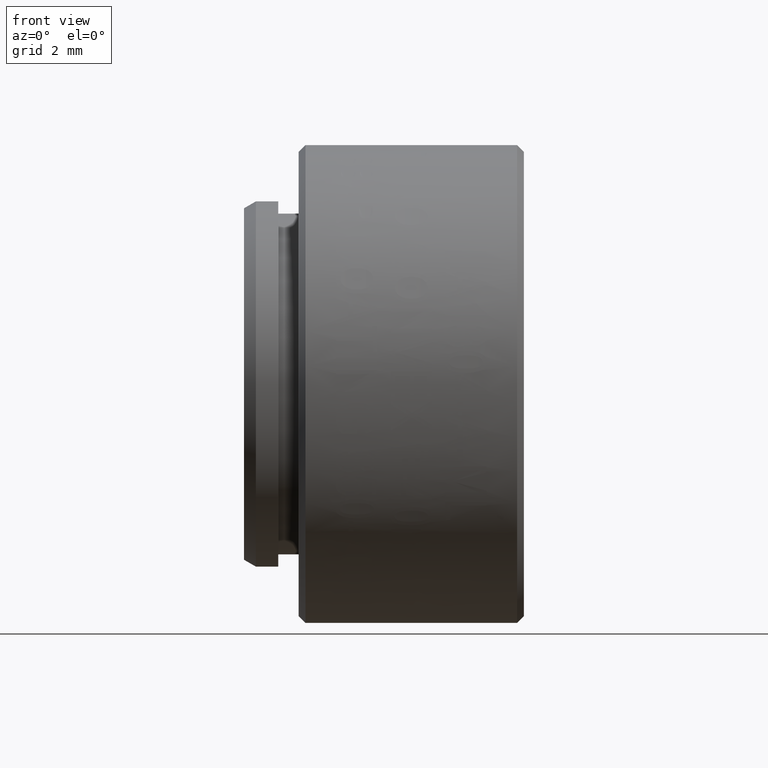
[diagram: clean part render]
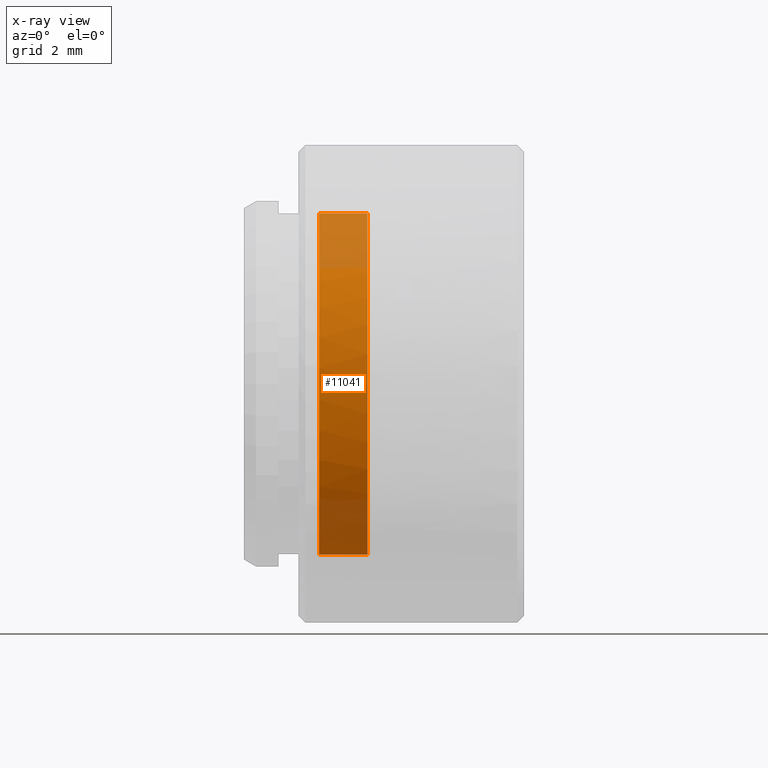
[diagram: x-ray — body ghosted, one internal face saturated and labeled with its STEP entity id]
A machine part, front view, then the same camera in x-ray: the body is ghosted and one INTERNAL B-rep face — a face not visible from any outside direction — is saturated and labeled: STEP entity #11041.
In plain terms, the highlighted cylindrical surface (partial cylindrical patch) has radius 6.35 mm, axis along (1, 0, 0).
Its self-contained STEP definition (entity closure, byte-faithful):
#187 = CYLINDRICAL_SURFACE ( 'NONE', #15001, 0.2500000000000001100 ) ;
#710 = CARTESIAN_POINT ( 'NONE',  ( -0.02425689957333913500, 2.489498125257398800E-017, -0.2500000000000000600 ) ) ;
#875 = AXIS2_PLACEMENT_3D ( 'NONE', #9854, #1572, #11232 ) ;
#1404 = ORIENTED_EDGE ( 'NONE', *, *, #7452, .F. ) ;
#1572 = DIRECTION ( 'NONE',  ( 1.000000000000000000, 0.0000000000000000000, 0.0000000000000000000 ) ) ;
#1752 = ORIENTED_EDGE ( 'NONE', *, *, #7938, .T. ) ;
#1776 = VECTOR ( 'NONE', #12412, 39.37007874015748100 ) ;
#1937 = EDGE_LOOP ( 'NONE', ( #13797, #1752, #3020, #7734, #1404 ) ) ;
#2006 = LINE ( 'NONE', #8185, #9351 ) ;
#2995 = CIRCLE ( 'NONE', #875, 0.2500000000000000600 ) ;
#3020 = ORIENTED_EDGE ( 'NONE', *, *, #10444, .F. ) ;
#3346 = DIRECTION ( 'NONE',  ( 1.000000000000000000, 0.0000000000000000000, 0.0000000000000000000 ) ) ;
#3921 = VERTEX_POINT ( 'NONE', #710 ) ;
#4646 = DIRECTION ( 'NONE',  ( 1.000000000000000000, 0.0000000000000000000, 0.0000000000000000000 ) ) ;
#4872 = VERTEX_POINT ( 'NONE', #12402 ) ;
#5734 = CARTESIAN_POINT ( 'NONE',  ( -0.09499999999999990400, 2.489498125257398800E-017, -0.2500000000000000000 ) ) ;
#5976 = CARTESIAN_POINT ( 'NONE',  ( -0.09499999999999990400, -5.551115123125782700E-017, 0.2500000000000000600 ) ) ;
#6183 = DIRECTION ( 'NONE',  ( 0.0000000000000000000, -2.220446049250312600E-016, 1.000000000000000000 ) ) ;
#7452 = EDGE_CURVE ( 'NONE', #9801, #9154, #2006, .T. ) ;
#7516 = FACE_OUTER_BOUND ( 'NONE', #1937, .T. ) ;
#7734 = ORIENTED_EDGE ( 'NONE', *, *, #8468, .F. ) ;
#7938 = EDGE_CURVE ( 'NONE', #17222, #3921, #13247, .T. ) ;
#7985 = DIRECTION ( 'NONE',  ( 1.000000000000000000, 0.0000000000000000000, 0.0000000000000000000 ) ) ;
#8185 = CARTESIAN_POINT ( 'NONE',  ( 0.1297296080866287300, -5.551115123125783900E-017, 0.2500000000000001100 ) ) ;
#8468 = EDGE_CURVE ( 'NONE', #9154, #4872, #8877, .T. ) ;
#8604 = CIRCLE ( 'NONE', #9775, 0.2500000000000001100 ) ;
#8877 = CIRCLE ( 'NONE', #9311, 0.2500000000000001100 ) ;
#9154 = VERTEX_POINT ( 'NONE', #14782 ) ;
#9311 = AXIS2_PLACEMENT_3D ( 'NONE', #12936, #4646, #14313 ) ;
#9351 = VECTOR ( 'NONE', #10967, 39.37007874015748100 ) ;
#9699 = EDGE_CURVE ( 'NONE', #9801, #17222, #2995, .T. ) ;
#9775 = AXIS2_PLACEMENT_3D ( 'NONE', #16307, #7985, #17688 ) ;
#9801 = VERTEX_POINT ( 'NONE', #5976 ) ;
#9854 = CARTESIAN_POINT ( 'NONE',  ( -0.09499999999999990400, 0.0000000000000000000, 0.0000000000000000000 ) ) ;
#10444 = EDGE_CURVE ( 'NONE', #4872, #3921, #8604, .T. ) ;
#10967 = DIRECTION ( 'NONE',  ( 1.000000000000000000, 0.0000000000000000000, 0.0000000000000000000 ) ) ;
#11013 = CARTESIAN_POINT ( 'NONE',  ( 0.1297296080866287300, 2.489498125257399400E-017, -0.2500000000000001100 ) ) ;
#11041 = ADVANCED_FACE ( 'NONE', ( #7516 ), #187, .T. ) ;
#11232 = DIRECTION ( 'NONE',  ( 0.0000000000000000000, -2.220446049250312600E-016, 1.000000000000000000 ) ) ;
#12402 = CARTESIAN_POINT ( 'NONE',  ( -0.02425689957333913500, -0.2500000000000002200, 0.0000000000000000000 ) ) ;
#12412 = DIRECTION ( 'NONE',  ( 1.000000000000000000, 0.0000000000000000000, 0.0000000000000000000 ) ) ;
#12936 = CARTESIAN_POINT ( 'NONE',  ( -0.02425689957333913500, 0.0000000000000000000, 0.0000000000000000000 ) ) ;
#13247 = LINE ( 'NONE', #11013, #1776 ) ;
#13797 = ORIENTED_EDGE ( 'NONE', *, *, #9699, .T. ) ;
#14313 = DIRECTION ( 'NONE',  ( 0.0000000000000000000, -2.220446049250312600E-016, 1.000000000000000000 ) ) ;
#14782 = CARTESIAN_POINT ( 'NONE',  ( -0.02425689957333913500, -5.551115123125782700E-017, 0.2500000000000000600 ) ) ;
#15001 = AXIS2_PLACEMENT_3D ( 'NONE', #15812, #3346, #6183 ) ;
#15812 = CARTESIAN_POINT ( 'NONE',  ( 0.1297296080866287300, 0.0000000000000000000, 0.0000000000000000000 ) ) ;
#16307 = CARTESIAN_POINT ( 'NONE',  ( -0.02425689957333913500, 0.0000000000000000000, 0.0000000000000000000 ) ) ;
#17222 = VERTEX_POINT ( 'NONE', #5734 ) ;
#17688 = DIRECTION ( 'NONE',  ( 0.0000000000000000000, -2.220446049250312600E-016, 1.000000000000000000 ) ) ;